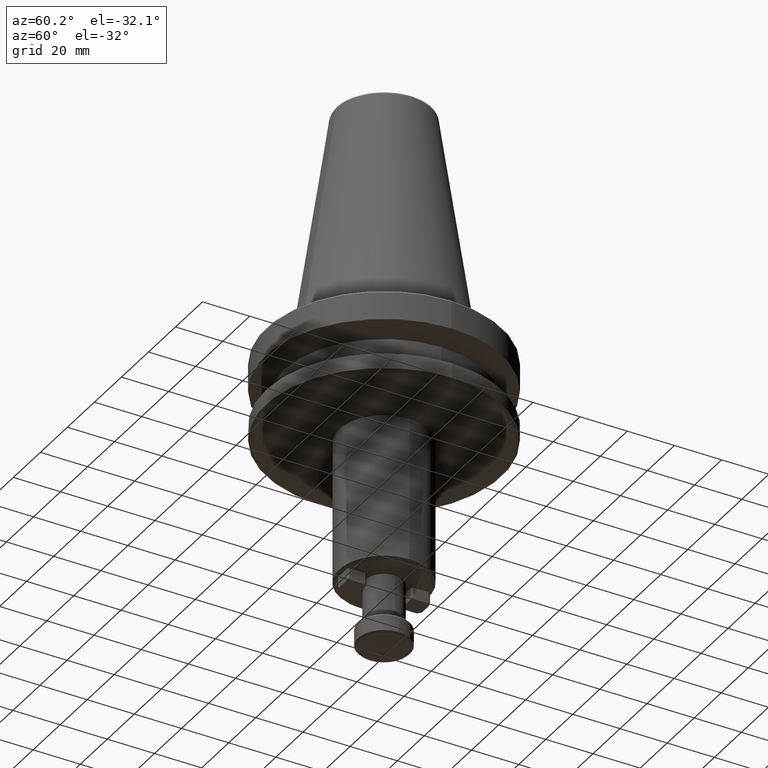
[diagram: clean part render]
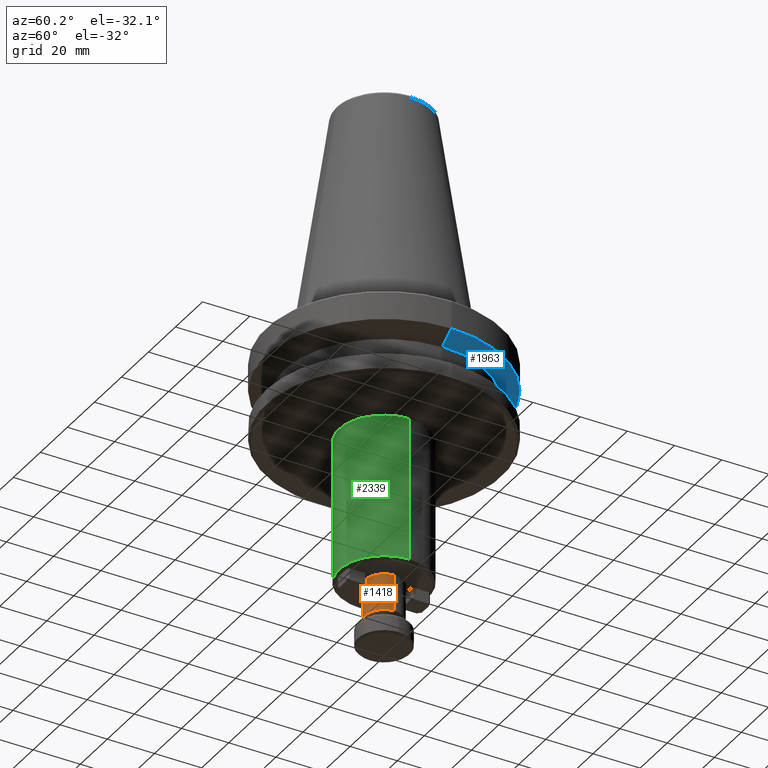
[diagram: same view with three faces highlighted in distinct colors, each labeled with its STEP entity id]
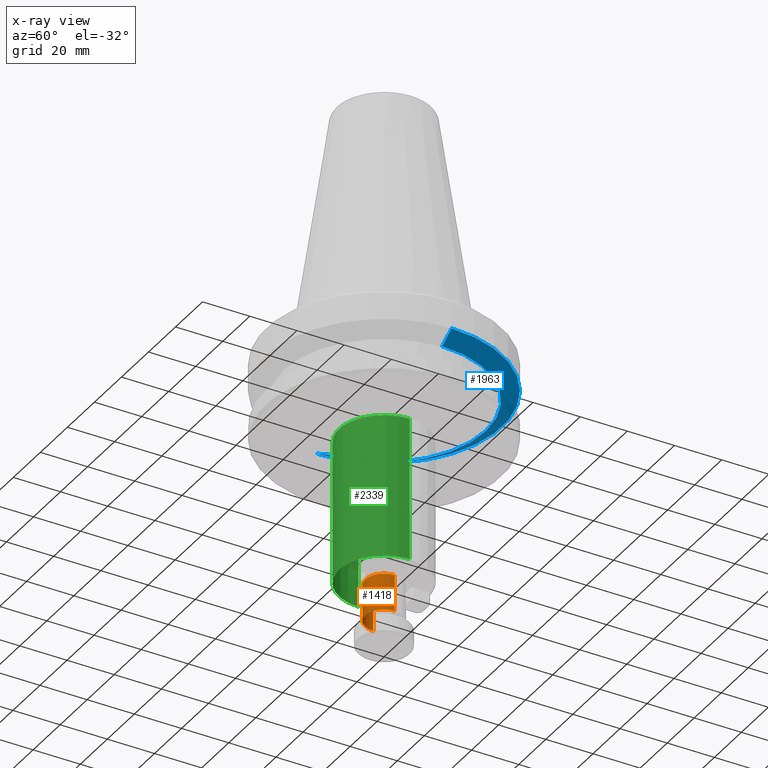
[diagram: x-ray of the same camera — body ghosted, the three highlighted faces saturated]
A machine part, auxiliary view with three faces highlighted in distinct colors.
The next image is the same camera in x-ray (body ghosted, the three faces saturated) — at least one of them is partly hidden behind the body in this view.
Their STEP definitions:

[orange] entity #1418 — the highlighted cylindrical surface (edge-blend (fillet) strip) has radius 8 mm, axis along (0, 0, 1).
#88 = ORIENTED_EDGE ( 'NONE', *, *, #2074, .T. ) ;
#154 = AXIS2_PLACEMENT_3D ( 'NONE', #190, #223, #192 ) ;
#161 = CARTESIAN_POINT ( 'NONE',  ( 8.000000000000000000, 0.0000000000000000000, -115.5277568135664300 ) ) ;
#190 = CARTESIAN_POINT ( 'NONE',  ( 0.0000000000000000000, 0.0000000000000000000, 118.5507178974871000 ) ) ;
#192 = DIRECTION ( 'NONE',  ( 1.000000000000000000, 0.0000000000000000000, 0.0000000000000000000 ) ) ;
#209 = LINE ( 'NONE', #1239, #729 ) ;
#223 = DIRECTION ( 'NONE',  ( 0.0000000000000000000, 0.0000000000000000000, 1.000000000000000000 ) ) ;
#249 = ORIENTED_EDGE ( 'NONE', *, *, #828, .T. ) ;
#569 = CARTESIAN_POINT ( 'NONE',  ( -8.000000000000000000, 9.797174393178825700E-016, -115.5277568135664300 ) ) ;
#608 = DIRECTION ( 'NONE',  ( 0.0000000000000000000, 0.0000000000000000000, 1.000000000000000000 ) ) ;
#616 = CARTESIAN_POINT ( 'NONE',  ( -8.000000000000000000, 9.797174393178825700E-016, 118.5507178974871000 ) ) ;
#729 = VECTOR ( 'NONE', #1252, 1000.000000000000000 ) ;
#828 = EDGE_CURVE ( 'NONE', #2603, #1798, #209, .T. ) ;
#856 = CARTESIAN_POINT ( 'NONE',  ( -8.000000000000000000, 9.797174393178825700E-016, -99.99999999999998600 ) ) ;
#981 = CIRCLE ( 'NONE', #2692, 8.000000000000000000 ) ;
#1109 = CARTESIAN_POINT ( 'NONE',  ( 0.0000000000000000000, -7.999999999999991100, -115.5277568135664300 ) ) ;
#1113 = DIRECTION ( 'NONE',  ( 1.000000000000000000, 0.0000000000000000000, 0.0000000000000000000 ) ) ;
#1116 = DIRECTION ( 'NONE',  ( 0.0000000000000000000, 0.0000000000000000000, 1.000000000000000000 ) ) ;
#1120 = CARTESIAN_POINT ( 'NONE',  ( 0.0000000000000000000, 0.0000000000000000000, -115.5277568135664300 ) ) ;
#1121 = EDGE_CURVE ( 'NONE', #1632, #2309, #2496, .T. ) ;
#1239 = CARTESIAN_POINT ( 'NONE',  ( 8.000000000000000000, 0.0000000000000000000, 118.5507178974871000 ) ) ;
#1252 = DIRECTION ( 'NONE',  ( 0.0000000000000000000, 0.0000000000000000000, 1.000000000000000000 ) ) ;
#1318 = AXIS2_PLACEMENT_3D ( 'NONE', #1120, #1116, #1113 ) ;
#1374 = DIRECTION ( 'NONE',  ( 1.000000000000000000, 0.0000000000000000000, 0.0000000000000000000 ) ) ;
#1384 = DIRECTION ( 'NONE',  ( 0.0000000000000000000, 0.0000000000000000000, 1.000000000000000000 ) ) ;
#1397 = CARTESIAN_POINT ( 'NONE',  ( 0.0000000000000000000, 0.0000000000000000000, -115.5277568135664300 ) ) ;
#1418 = ADVANCED_FACE ( 'NONE', ( #1974 ), #2415, .T. ) ;
#1548 = DIRECTION ( 'NONE',  ( 0.0000000000000000000, 0.0000000000000000000, 1.000000000000000000 ) ) ;
#1601 = EDGE_CURVE ( 'NONE', #2309, #1798, #981, .T. ) ;
#1632 = VERTEX_POINT ( 'NONE', #569 ) ;
#1775 = ORIENTED_EDGE ( 'NONE', *, *, #1601, .F. ) ;
#1798 = VERTEX_POINT ( 'NONE', #2424 ) ;
#1879 = VECTOR ( 'NONE', #608, 1000.000000000000000 ) ;
#1961 = EDGE_CURVE ( 'NONE', #2119, #2603, #2224, .T. ) ;
#1974 = FACE_OUTER_BOUND ( 'NONE', #2155, .T. ) ;
#2059 = CARTESIAN_POINT ( 'NONE',  ( 0.0000000000000000000, 0.0000000000000000000, -99.99999999999998600 ) ) ;
#2074 = EDGE_CURVE ( 'NONE', #1632, #2119, #2581, .T. ) ;
#2090 = DIRECTION ( 'NONE',  ( 1.000000000000000000, 0.0000000000000000000, 0.0000000000000000000 ) ) ;
#2119 = VERTEX_POINT ( 'NONE', #1109 ) ;
#2155 = EDGE_LOOP ( 'NONE', ( #2467, #88, #2259, #249, #1775 ) ) ;
#2224 = CIRCLE ( 'NONE', #2397, 8.000000000000000000 ) ;
#2259 = ORIENTED_EDGE ( 'NONE', *, *, #1961, .T. ) ;
#2309 = VERTEX_POINT ( 'NONE', #856 ) ;
#2397 = AXIS2_PLACEMENT_3D ( 'NONE', #1397, #1384, #1374 ) ;
#2415 = CYLINDRICAL_SURFACE ( 'NONE', #154, 8.000000000000000000 ) ;
#2424 = CARTESIAN_POINT ( 'NONE',  ( 8.000000000000000000, 0.0000000000000000000, -99.99999999999998600 ) ) ;
#2467 = ORIENTED_EDGE ( 'NONE', *, *, #1121, .F. ) ;
#2496 = LINE ( 'NONE', #616, #1879 ) ;
#2581 = CIRCLE ( 'NONE', #1318, 8.000000000000000000 ) ;
#2603 = VERTEX_POINT ( 'NONE', #161 ) ;
#2692 = AXIS2_PLACEMENT_3D ( 'NONE', #2059, #1548, #2090 ) ;

[blue] entity #1963 — the highlighted conical surface has half-angle 60 deg.
#95 = CARTESIAN_POINT ( 'NONE',  ( 50.00000000000000000, 0.0000000000000000000, -15.70022000322675400 ) ) ;
#131 = VECTOR ( 'NONE', #1544, 1000.000000000000000 ) ;
#287 = AXIS2_PLACEMENT_3D ( 'NONE', #1287, #1283, #1281 ) ;
#293 = CARTESIAN_POINT ( 'NONE',  ( -50.00000000000000000, 6.123233995736766100E-015, -15.70022000322675400 ) ) ;
#298 = DIRECTION ( 'NONE',  ( 1.000000000000000000, 0.0000000000000000000, 0.0000000000000000000 ) ) ;
#300 = DIRECTION ( 'NONE',  ( 0.0000000000000000000, 0.0000000000000000000, 1.000000000000000000 ) ) ;
#302 = CARTESIAN_POINT ( 'NONE',  ( 0.0000000000000000000, 0.0000000000000000000, -19.70000000000001000 ) ) ;
#578 = FACE_OUTER_BOUND ( 'NONE', #1179, .T. ) ;
#626 = EDGE_CURVE ( 'NONE', #2247, #2545, #1525, .T. ) ;
#779 = EDGE_CURVE ( 'NONE', #1498, #2545, #1490, .T. ) ;
#836 = CARTESIAN_POINT ( 'NONE',  ( 43.07217782649103600, 0.0000000000000000000, -19.70000000000001000 ) ) ;
#911 = VERTEX_POINT ( 'NONE', #836 ) ;
#913 = VECTOR ( 'NONE', #1606, 1000.000000000000000 ) ;
#965 = CARTESIAN_POINT ( 'NONE',  ( -43.07217782649103600, 5.699027233244276000E-015, -19.70000000000001000 ) ) ;
#1022 = ORIENTED_EDGE ( 'NONE', *, *, #1291, .T. ) ;
#1179 = EDGE_LOOP ( 'NONE', ( #1022, #2197, #2387, #1832 ) ) ;
#1281 = DIRECTION ( 'NONE',  ( 1.000000000000000000, 0.0000000000000000000, 0.0000000000000000000 ) ) ;
#1283 = DIRECTION ( 'NONE',  ( 0.0000000000000000000, 0.0000000000000000000, 1.000000000000000000 ) ) ;
#1287 = CARTESIAN_POINT ( 'NONE',  ( 0.0000000000000000000, 0.0000000000000000000, -15.70022000322675400 ) ) ;
#1291 = EDGE_CURVE ( 'NONE', #911, #2247, #1611, .T. ) ;
#1404 = DIRECTION ( 'NONE',  ( 0.0000000000000000000, 0.0000000000000000000, 1.000000000000000000 ) ) ;
#1412 = DIRECTION ( 'NONE',  ( 1.000000000000000000, 0.0000000000000000000, 0.0000000000000000000 ) ) ;
#1490 = CIRCLE ( 'NONE', #287, 50.00000000000000000 ) ;
#1498 = VERTEX_POINT ( 'NONE', #95 ) ;
#1503 = CARTESIAN_POINT ( 'NONE',  ( 0.0000000000000000000, 0.0000000000000000000, -15.70022000322674700 ) ) ;
#1525 = LINE ( 'NONE', #2354, #913 ) ;
#1544 = DIRECTION ( 'NONE',  ( 0.8660254037844388200, 0.0000000000000000000, 0.4999999999999997200 ) ) ;
#1556 = CARTESIAN_POINT ( 'NONE',  ( 50.00000000000001400, 0.0000000000000000000, -15.70022000322674700 ) ) ;
#1606 = DIRECTION ( 'NONE',  ( -0.8660254037844388200, 1.060575238724907200E-016, 0.4999999999999997200 ) ) ;
#1611 = CIRCLE ( 'NONE', #2486, 43.07217782649103600 ) ;
#1643 = CONICAL_SURFACE ( 'NONE', #1975, 50.00000000000001400, 1.047197551196598100 ) ;
#1832 = ORIENTED_EDGE ( 'NONE', *, *, #1924, .F. ) ;
#1924 = EDGE_CURVE ( 'NONE', #911, #1498, #2344, .T. ) ;
#1963 = ADVANCED_FACE ( 'NONE', ( #578 ), #1643, .T. ) ;
#1975 = AXIS2_PLACEMENT_3D ( 'NONE', #1503, #1404, #1412 ) ;
#2197 = ORIENTED_EDGE ( 'NONE', *, *, #626, .T. ) ;
#2247 = VERTEX_POINT ( 'NONE', #965 ) ;
#2344 = LINE ( 'NONE', #1556, #131 ) ;
#2354 = CARTESIAN_POINT ( 'NONE',  ( -50.00000000000001400, 6.123233995736767700E-015, -15.70022000322674700 ) ) ;
#2387 = ORIENTED_EDGE ( 'NONE', *, *, #779, .F. ) ;
#2486 = AXIS2_PLACEMENT_3D ( 'NONE', #302, #300, #298 ) ;
#2545 = VERTEX_POINT ( 'NONE', #293 ) ;

[green] entity #2339 — the highlighted cylindrical surface (partial cylindrical patch) has radius 19 mm, axis along (0, 0, 1).
#100 = CIRCLE ( 'NONE', #1220, 19.00000000000000000 ) ;
#234 = CARTESIAN_POINT ( 'NONE',  ( 19.00000000000001400, 0.0000000000000000000, -98.99999999999998600 ) ) ;
#277 = EDGE_CURVE ( 'NONE', #2154, #580, #699, .T. ) ;
#297 = EDGE_CURVE ( 'NONE', #2572, #2384, #558, .T. ) ;
#558 = LINE ( 'NONE', #1864, #2675 ) ;
#580 = VERTEX_POINT ( 'NONE', #1662 ) ;
#605 = DIRECTION ( 'NONE',  ( 1.000000000000000000, 0.0000000000000000000, 0.0000000000000000000 ) ) ;
#607 = DIRECTION ( 'NONE',  ( 0.0000000000000000000, 0.0000000000000000000, 1.000000000000000000 ) ) ;
#613 = CARTESIAN_POINT ( 'NONE',  ( 0.0000000000000000000, 0.0000000000000000000, -98.99999999999998600 ) ) ;
#625 = CARTESIAN_POINT ( 'NONE',  ( 19.00000000000000000, 0.0000000000000000000, -37.99999999999999300 ) ) ;
#699 = LINE ( 'NONE', #2087, #1748 ) ;
#745 = DIRECTION ( 'NONE',  ( 1.000000000000000000, 0.0000000000000000000, 0.0000000000000000000 ) ) ;
#752 = DIRECTION ( 'NONE',  ( 0.0000000000000000000, 0.0000000000000000000, 1.000000000000000000 ) ) ;
#756 = CARTESIAN_POINT ( 'NONE',  ( 0.0000000000000000000, 0.0000000000000000000, 118.5507178974871000 ) ) ;
#820 = DIRECTION ( 'NONE',  ( 1.000000000000000000, 0.0000000000000000000, 0.0000000000000000000 ) ) ;
#823 = DIRECTION ( 'NONE',  ( -0.0000000000000000000, -0.0000000000000000000, -1.000000000000000000 ) ) ;
#824 = CARTESIAN_POINT ( 'NONE',  ( 0.0000000000000000000, 0.0000000000000000000, -37.99999999999999300 ) ) ;
#876 = ORIENTED_EDGE ( 'NONE', *, *, #277, .F. ) ;
#925 = EDGE_CURVE ( 'NONE', #2384, #580, #2229, .T. ) ;
#1093 = CARTESIAN_POINT ( 'NONE',  ( -19.00000000000001400, 2.326828918379972500E-015, -98.99999999999998600 ) ) ;
#1220 = AXIS2_PLACEMENT_3D ( 'NONE', #613, #607, #605 ) ;
#1298 = AXIS2_PLACEMENT_3D ( 'NONE', #824, #823, #820 ) ;
#1302 = CYLINDRICAL_SURFACE ( 'NONE', #1722, 19.00000000000000000 ) ;
#1424 = EDGE_LOOP ( 'NONE', ( #876, #2125, #2041, #2298 ) ) ;
#1662 = CARTESIAN_POINT ( 'NONE',  ( -19.00000000000000000, 2.326828918379971000E-015, -37.99999999999999300 ) ) ;
#1722 = AXIS2_PLACEMENT_3D ( 'NONE', #756, #752, #745 ) ;
#1748 = VECTOR ( 'NONE', #2033, 1000.000000000000000 ) ;
#1864 = CARTESIAN_POINT ( 'NONE',  ( 19.00000000000000000, 0.0000000000000000000, 118.5507178974871000 ) ) ;
#1939 = FACE_OUTER_BOUND ( 'NONE', #1424, .T. ) ;
#2033 = DIRECTION ( 'NONE',  ( 0.0000000000000000000, 0.0000000000000000000, 1.000000000000000000 ) ) ;
#2041 = ORIENTED_EDGE ( 'NONE', *, *, #297, .T. ) ;
#2086 = DIRECTION ( 'NONE',  ( 0.0000000000000000000, 0.0000000000000000000, 1.000000000000000000 ) ) ;
#2087 = CARTESIAN_POINT ( 'NONE',  ( -19.00000000000000000, 2.326828918379971000E-015, 118.5507178974871000 ) ) ;
#2125 = ORIENTED_EDGE ( 'NONE', *, *, #2379, .T. ) ;
#2154 = VERTEX_POINT ( 'NONE', #1093 ) ;
#2229 = CIRCLE ( 'NONE', #1298, 19.00000000000000000 ) ;
#2298 = ORIENTED_EDGE ( 'NONE', *, *, #925, .T. ) ;
#2339 = ADVANCED_FACE ( 'NONE', ( #1939 ), #1302, .T. ) ;
#2379 = EDGE_CURVE ( 'NONE', #2154, #2572, #100, .T. ) ;
#2384 = VERTEX_POINT ( 'NONE', #625 ) ;
#2572 = VERTEX_POINT ( 'NONE', #234 ) ;
#2675 = VECTOR ( 'NONE', #2086, 1000.000000000000000 ) ;